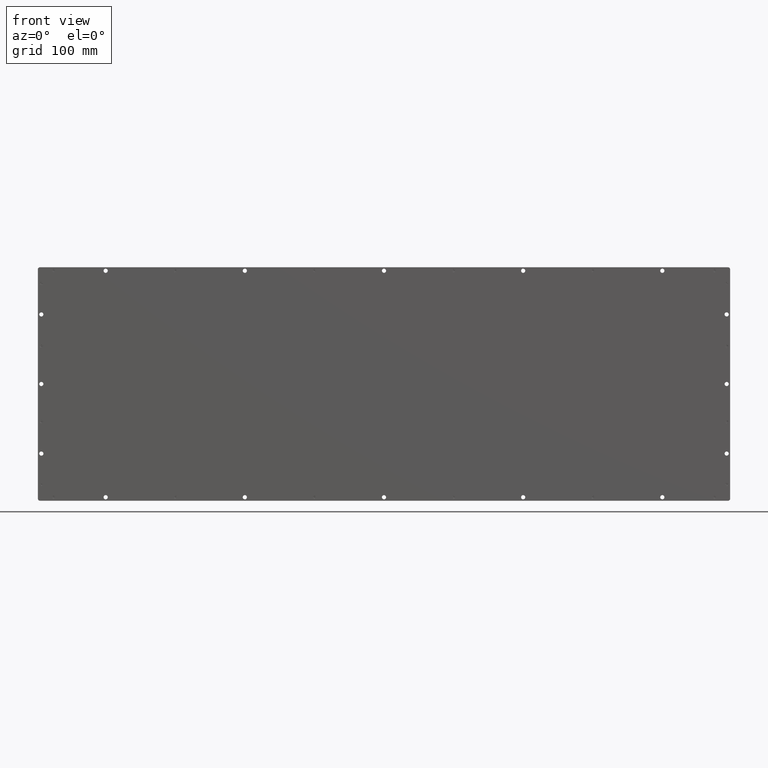
[diagram: clean part render]
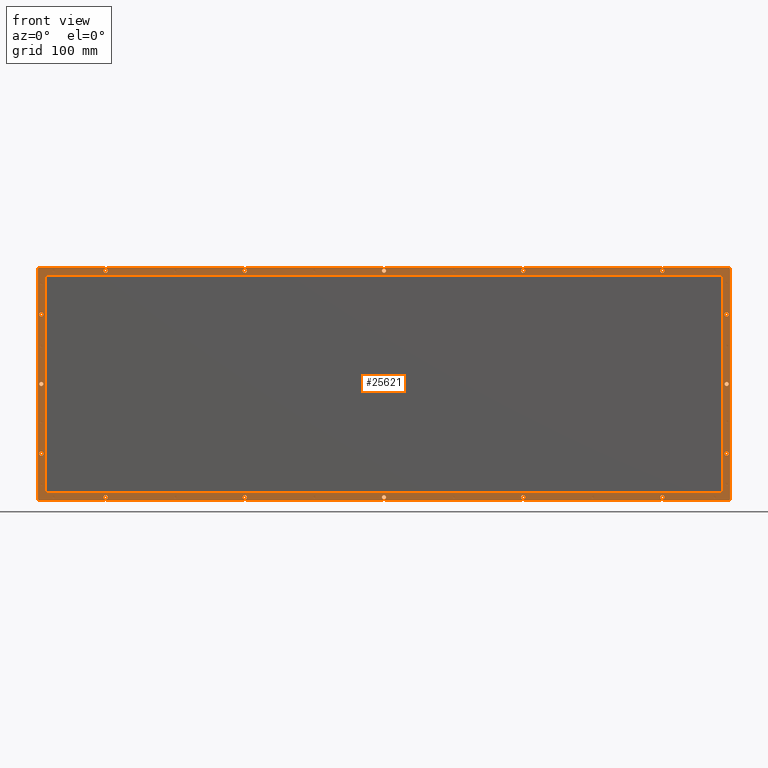
[diagram: same view with one face highlighted and labeled with its STEP entity id]
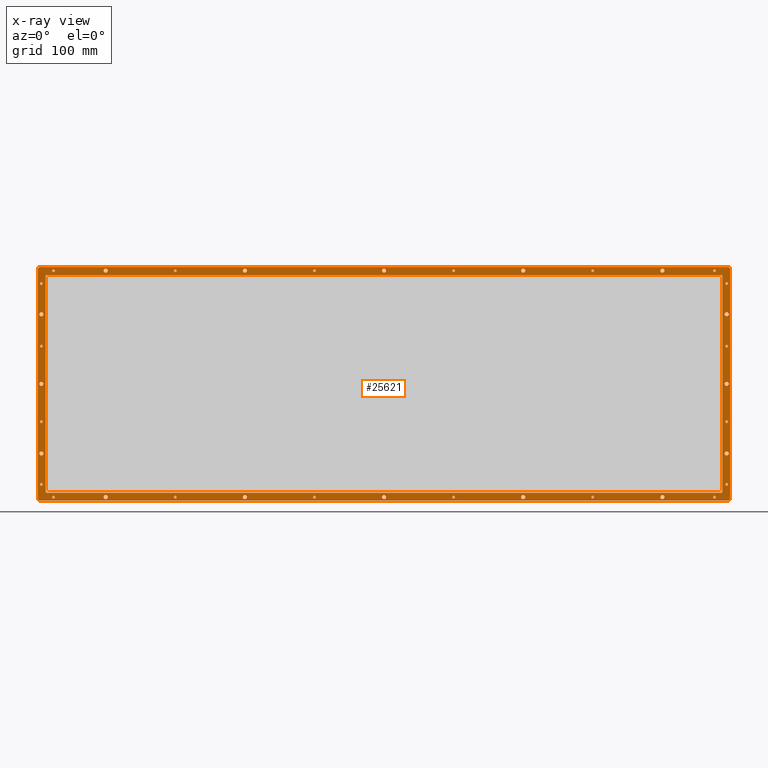
[diagram: x-ray of the same camera — body ghosted, the highlighted face saturated]
A machine part, front view. The second image highlights one B-rep face of the part: STEP entity #25621.
The next image is the same camera in x-ray: the body ghosted, the highlighted face saturated — about 0% of this face is hidden behind the body in this view.
In plain terms, the highlighted planar face has unit normal (-0, -1, 0).
Its self-contained STEP definition (entity closure, byte-faithful):
#2174=FACE_BOUND('',#5493,.T.);
#2175=FACE_BOUND('',#5494,.T.);
#2176=FACE_BOUND('',#5495,.T.);
#2177=FACE_BOUND('',#5496,.T.);
#2178=FACE_BOUND('',#5497,.T.);
#2179=FACE_BOUND('',#5498,.T.);
#2180=FACE_BOUND('',#5499,.T.);
#2181=FACE_BOUND('',#5500,.T.);
#2182=FACE_BOUND('',#5501,.T.);
#2183=FACE_BOUND('',#5502,.T.);
#2184=FACE_BOUND('',#5503,.T.);
#2185=FACE_BOUND('',#5504,.T.);
#2186=FACE_BOUND('',#5505,.T.);
#2187=FACE_BOUND('',#5506,.T.);
#2188=FACE_BOUND('',#5507,.T.);
#2189=FACE_BOUND('',#5508,.T.);
#2190=FACE_BOUND('',#5509,.T.);
#2191=FACE_BOUND('',#5510,.T.);
#2192=FACE_BOUND('',#5511,.T.);
#2193=FACE_BOUND('',#5512,.T.);
#2194=FACE_BOUND('',#5513,.T.);
#2195=FACE_BOUND('',#5514,.T.);
#2196=FACE_BOUND('',#5515,.T.);
#2197=FACE_BOUND('',#5516,.T.);
#2198=FACE_BOUND('',#5517,.T.);
#2199=FACE_BOUND('',#5518,.T.);
#2200=FACE_BOUND('',#5519,.T.);
#2201=FACE_BOUND('',#5520,.T.);
#2202=FACE_BOUND('',#5521,.T.);
#2203=FACE_BOUND('',#5522,.T.);
#2204=FACE_BOUND('',#5523,.T.);
#2205=FACE_BOUND('',#5524,.T.);
#2206=FACE_BOUND('',#5525,.T.);
#2207=FACE_BOUND('',#5526,.T.);
#2208=FACE_BOUND('',#5527,.T.);
#2209=FACE_BOUND('',#5528,.T.);
#2210=FACE_BOUND('',#5529,.T.);
#2821=CIRCLE('',#27711,2.);
#2822=CIRCLE('',#27712,2.);
#2825=CIRCLE('',#27716,2.);
#2826=CIRCLE('',#27717,2.);
#2829=CIRCLE('',#27721,2.);
#2830=CIRCLE('',#27722,2.);
#2833=CIRCLE('',#27726,2.);
#2834=CIRCLE('',#27727,2.);
#2837=CIRCLE('',#27731,2.);
#2838=CIRCLE('',#27732,2.);
#2841=CIRCLE('',#27736,2.);
#2842=CIRCLE('',#27737,2.);
#2845=CIRCLE('',#27741,2.);
#2846=CIRCLE('',#27742,2.);
#2849=CIRCLE('',#27746,2.);
#2850=CIRCLE('',#27747,2.);
#2853=CIRCLE('',#27751,2.);
#2854=CIRCLE('',#27752,2.);
#2857=CIRCLE('',#27756,2.);
#2858=CIRCLE('',#27757,2.);
#2861=CIRCLE('',#27761,2.);
#2862=CIRCLE('',#27762,2.);
#2865=CIRCLE('',#27766,2.);
#2866=CIRCLE('',#27767,2.);
#2869=CIRCLE('',#27771,2.);
#2870=CIRCLE('',#27772,2.);
#2873=CIRCLE('',#27776,2.);
#2874=CIRCLE('',#27777,2.);
#2877=CIRCLE('',#27781,2.);
#2878=CIRCLE('',#27782,2.);
#2881=CIRCLE('',#27786,2.);
#2882=CIRCLE('',#27787,2.);
#2885=CIRCLE('',#27791,2.);
#2886=CIRCLE('',#27792,2.);
#2889=CIRCLE('',#27796,2.);
#2890=CIRCLE('',#27797,2.);
#2893=CIRCLE('',#27801,2.);
#2894=CIRCLE('',#27802,2.);
#2897=CIRCLE('',#27806,2.);
#2898=CIRCLE('',#27807,2.);
#2901=CIRCLE('',#27811,1.9999985058502);
#2903=CIRCLE('',#27815,1.9999985058502);
#2905=CIRCLE('',#27819,1.9999985058502);
#2907=CIRCLE('',#27823,1.9999985058502);
#2910=CIRCLE('',#27828,2.99999775877528);
#2912=CIRCLE('',#27831,2.99999775877528);
#2914=CIRCLE('',#27834,2.99999775877528);
#2916=CIRCLE('',#27837,2.99999775877528);
#2918=CIRCLE('',#27840,2.99999775877528);
#2920=CIRCLE('',#27843,2.99999775877528);
#2922=CIRCLE('',#27846,2.99999775877528);
#2924=CIRCLE('',#27849,2.99999775877528);
#2926=CIRCLE('',#27852,2.99999775877528);
#2928=CIRCLE('',#27855,2.99999775877528);
#2930=CIRCLE('',#27858,2.99999775877528);
#2932=CIRCLE('',#27861,2.99999775877528);
#2934=CIRCLE('',#27864,2.99999775877528);
#2936=CIRCLE('',#27867,2.99999775877528);
#2938=CIRCLE('',#27870,2.99999775877528);
#2940=CIRCLE('',#27873,2.99999775877528);
#2961=CIRCLE('',#27915,2.99999775877528);
#2963=CIRCLE('',#27919,2.99999775877528);
#2965=CIRCLE('',#27923,2.99999775877528);
#2967=CIRCLE('',#27927,2.99999775877528);
#3885=FACE_OUTER_BOUND('',#5492,.T.);
#5492=EDGE_LOOP('',(#19324,#19325,#19326,#19327,#19328,#19329,#19330,#19331));
#5493=EDGE_LOOP('',(#19332,#19333));
#5494=EDGE_LOOP('',(#19334,#19335));
#5495=EDGE_LOOP('',(#19336,#19337));
#5496=EDGE_LOOP('',(#19338,#19339));
#5497=EDGE_LOOP('',(#19340,#19341));
#5498=EDGE_LOOP('',(#19342,#19343));
#5499=EDGE_LOOP('',(#19344,#19345));
#5500=EDGE_LOOP('',(#19346,#19347));
#5501=EDGE_LOOP('',(#19348,#19349));
#5502=EDGE_LOOP('',(#19350,#19351));
#5503=EDGE_LOOP('',(#19352,#19353));
#5504=EDGE_LOOP('',(#19354,#19355));
#5505=EDGE_LOOP('',(#19356,#19357));
#5506=EDGE_LOOP('',(#19358,#19359));
#5507=EDGE_LOOP('',(#19360,#19361));
#5508=EDGE_LOOP('',(#19362,#19363));
#5509=EDGE_LOOP('',(#19364,#19365));
#5510=EDGE_LOOP('',(#19366,#19367));
#5511=EDGE_LOOP('',(#19368,#19369));
#5512=EDGE_LOOP('',(#19370,#19371));
#5513=EDGE_LOOP('',(#19372,#19373,#19374,#19375,#19376,#19377,#19378,#19379));
#5514=EDGE_LOOP('',(#19380));
#5515=EDGE_LOOP('',(#19381));
#5516=EDGE_LOOP('',(#19382));
#5517=EDGE_LOOP('',(#19383));
#5518=EDGE_LOOP('',(#19384));
#5519=EDGE_LOOP('',(#19385));
#5520=EDGE_LOOP('',(#19386));
#5521=EDGE_LOOP('',(#19387));
#5522=EDGE_LOOP('',(#19388));
#5523=EDGE_LOOP('',(#19389));
#5524=EDGE_LOOP('',(#19390));
#5525=EDGE_LOOP('',(#19391));
#5526=EDGE_LOOP('',(#19392));
#5527=EDGE_LOOP('',(#19393));
#5528=EDGE_LOOP('',(#19394));
#5529=EDGE_LOOP('',(#19395));
#7238=LINE('',#39080,#9451);
#7242=LINE('',#39092,#9455);
#7246=LINE('',#39104,#9459);
#7250=LINE('',#39115,#9463);
#7290=LINE('',#39304,#9503);
#7294=LINE('',#39316,#9507);
#7298=LINE('',#39328,#9511);
#7302=LINE('',#39339,#9515);
#9451=VECTOR('',#31544,10.);
#9455=VECTOR('',#31556,10.);
#9459=VECTOR('',#31568,10.);
#9463=VECTOR('',#31580,10.);
#9503=VECTOR('',#31804,10.);
#9507=VECTOR('',#31816,10.);
#9511=VECTOR('',#31828,10.);
#9515=VECTOR('',#31840,10.);
#11758=VERTEX_POINT('',#38870);
#11759=VERTEX_POINT('',#38871);
#11762=VERTEX_POINT('',#38880);
#11763=VERTEX_POINT('',#38881);
#11766=VERTEX_POINT('',#38890);
#11767=VERTEX_POINT('',#38891);
#11770=VERTEX_POINT('',#38900);
#11771=VERTEX_POINT('',#38901);
#11774=VERTEX_POINT('',#38910);
#11775=VERTEX_POINT('',#38911);
#11778=VERTEX_POINT('',#38920);
#11779=VERTEX_POINT('',#38921);
#11782=VERTEX_POINT('',#38930);
#11783=VERTEX_POINT('',#38931);
#11786=VERTEX_POINT('',#38940);
#11787=VERTEX_POINT('',#38941);
#11790=VERTEX_POINT('',#38950);
#11791=VERTEX_POINT('',#38951);
#11794=VERTEX_POINT('',#38960);
#11795=VERTEX_POINT('',#38961);
#11798=VERTEX_POINT('',#38970);
#11799=VERTEX_POINT('',#38971);
#11802=VERTEX_POINT('',#38980);
#11803=VERTEX_POINT('',#38981);
#11806=VERTEX_POINT('',#38990);
#11807=VERTEX_POINT('',#38991);
#11810=VERTEX_POINT('',#39000);
#11811=VERTEX_POINT('',#39001);
#11814=VERTEX_POINT('',#39010);
#11815=VERTEX_POINT('',#39011);
#11818=VERTEX_POINT('',#39020);
#11819=VERTEX_POINT('',#39021);
#11822=VERTEX_POINT('',#39030);
#11823=VERTEX_POINT('',#39031);
#11826=VERTEX_POINT('',#39040);
#11827=VERTEX_POINT('',#39041);
#11830=VERTEX_POINT('',#39050);
#11831=VERTEX_POINT('',#39051);
#11834=VERTEX_POINT('',#39060);
#11835=VERTEX_POINT('',#39061);
#11838=VERTEX_POINT('',#39070);
#11839=VERTEX_POINT('',#39071);
#11842=VERTEX_POINT('',#39079);
#11844=VERTEX_POINT('',#39085);
#11846=VERTEX_POINT('',#39091);
#11848=VERTEX_POINT('',#39097);
#11850=VERTEX_POINT('',#39103);
#11852=VERTEX_POINT('',#39109);
#11855=VERTEX_POINT('',#39120);
#11857=VERTEX_POINT('',#39126);
#11859=VERTEX_POINT('',#39132);
#11861=VERTEX_POINT('',#39138);
#11863=VERTEX_POINT('',#39144);
#11865=VERTEX_POINT('',#39150);
#11867=VERTEX_POINT('',#39156);
#11869=VERTEX_POINT('',#39162);
#11871=VERTEX_POINT('',#39168);
#11873=VERTEX_POINT('',#39174);
#11875=VERTEX_POINT('',#39180);
#11877=VERTEX_POINT('',#39186);
#11879=VERTEX_POINT('',#39192);
#11881=VERTEX_POINT('',#39198);
#11883=VERTEX_POINT('',#39204);
#11885=VERTEX_POINT('',#39210);
#11906=VERTEX_POINT('',#39294);
#11907=VERTEX_POINT('',#39295);
#11910=VERTEX_POINT('',#39303);
#11912=VERTEX_POINT('',#39309);
#11914=VERTEX_POINT('',#39315);
#11916=VERTEX_POINT('',#39321);
#11918=VERTEX_POINT('',#39327);
#11920=VERTEX_POINT('',#39333);
#14477=EDGE_CURVE('',#11758,#11759,#2821,.T.);
#14478=EDGE_CURVE('',#11759,#11758,#2822,.T.);
#14482=EDGE_CURVE('',#11762,#11763,#2825,.T.);
#14483=EDGE_CURVE('',#11763,#11762,#2826,.T.);
#14487=EDGE_CURVE('',#11766,#11767,#2829,.T.);
#14488=EDGE_CURVE('',#11767,#11766,#2830,.T.);
#14492=EDGE_CURVE('',#11770,#11771,#2833,.T.);
#14493=EDGE_CURVE('',#11771,#11770,#2834,.T.);
#14497=EDGE_CURVE('',#11774,#11775,#2837,.T.);
#14498=EDGE_CURVE('',#11775,#11774,#2838,.T.);
#14502=EDGE_CURVE('',#11778,#11779,#2841,.T.);
#14503=EDGE_CURVE('',#11779,#11778,#2842,.T.);
#14507=EDGE_CURVE('',#11782,#11783,#2845,.T.);
#14508=EDGE_CURVE('',#11783,#11782,#2846,.T.);
#14512=EDGE_CURVE('',#11786,#11787,#2849,.T.);
#14513=EDGE_CURVE('',#11787,#11786,#2850,.T.);
#14517=EDGE_CURVE('',#11790,#11791,#2853,.T.);
#14518=EDGE_CURVE('',#11791,#11790,#2854,.T.);
#14522=EDGE_CURVE('',#11794,#11795,#2857,.T.);
#14523=EDGE_CURVE('',#11795,#11794,#2858,.T.);
#14527=EDGE_CURVE('',#11798,#11799,#2861,.T.);
#14528=EDGE_CURVE('',#11799,#11798,#2862,.T.);
#14532=EDGE_CURVE('',#11802,#11803,#2865,.T.);
#14533=EDGE_CURVE('',#11803,#11802,#2866,.T.);
#14537=EDGE_CURVE('',#11806,#11807,#2869,.T.);
#14538=EDGE_CURVE('',#11807,#11806,#2870,.T.);
#14542=EDGE_CURVE('',#11810,#11811,#2873,.T.);
#14543=EDGE_CURVE('',#11811,#11810,#2874,.T.);
#14547=EDGE_CURVE('',#11814,#11815,#2877,.T.);
#14548=EDGE_CURVE('',#11815,#11814,#2878,.T.);
#14552=EDGE_CURVE('',#11818,#11819,#2881,.T.);
#14553=EDGE_CURVE('',#11819,#11818,#2882,.T.);
#14557=EDGE_CURVE('',#11822,#11823,#2885,.T.);
#14558=EDGE_CURVE('',#11823,#11822,#2886,.T.);
#14562=EDGE_CURVE('',#11826,#11827,#2889,.T.);
#14563=EDGE_CURVE('',#11827,#11826,#2890,.T.);
#14567=EDGE_CURVE('',#11830,#11831,#2893,.T.);
#14568=EDGE_CURVE('',#11831,#11830,#2894,.T.);
#14572=EDGE_CURVE('',#11834,#11835,#2897,.T.);
#14573=EDGE_CURVE('',#11835,#11834,#2898,.T.);
#14577=EDGE_CURVE('',#11838,#11839,#2901,.T.);
#14581=EDGE_CURVE('',#11839,#11842,#7238,.T.);
#14584=EDGE_CURVE('',#11842,#11844,#2903,.T.);
#14587=EDGE_CURVE('',#11844,#11846,#7242,.T.);
#14590=EDGE_CURVE('',#11846,#11848,#2905,.T.);
#14593=EDGE_CURVE('',#11848,#11850,#7246,.T.);
#14596=EDGE_CURVE('',#11850,#11852,#2907,.T.);
#14599=EDGE_CURVE('',#11852,#11838,#7250,.T.);
#14603=EDGE_CURVE('',#11855,#11855,#2910,.T.);
#14606=EDGE_CURVE('',#11857,#11857,#2912,.T.);
#14609=EDGE_CURVE('',#11859,#11859,#2914,.T.);
#14612=EDGE_CURVE('',#11861,#11861,#2916,.T.);
#14615=EDGE_CURVE('',#11863,#11863,#2918,.T.);
#14618=EDGE_CURVE('',#11865,#11865,#2920,.T.);
#14621=EDGE_CURVE('',#11867,#11867,#2922,.T.);
#14624=EDGE_CURVE('',#11869,#11869,#2924,.T.);
#14627=EDGE_CURVE('',#11871,#11871,#2926,.T.);
#14630=EDGE_CURVE('',#11873,#11873,#2928,.T.);
#14633=EDGE_CURVE('',#11875,#11875,#2930,.T.);
#14636=EDGE_CURVE('',#11877,#11877,#2932,.T.);
#14639=EDGE_CURVE('',#11879,#11879,#2934,.T.);
#14642=EDGE_CURVE('',#11881,#11881,#2936,.T.);
#14645=EDGE_CURVE('',#11883,#11883,#2938,.T.);
#14648=EDGE_CURVE('',#11885,#11885,#2940,.T.);
#14689=EDGE_CURVE('',#11906,#11907,#2961,.T.);
#14693=EDGE_CURVE('',#11907,#11910,#7290,.T.);
#14696=EDGE_CURVE('',#11910,#11912,#2963,.T.);
#14699=EDGE_CURVE('',#11912,#11914,#7294,.T.);
#14702=EDGE_CURVE('',#11914,#11916,#2965,.T.);
#14705=EDGE_CURVE('',#11916,#11918,#7298,.T.);
#14708=EDGE_CURVE('',#11918,#11920,#2967,.T.);
#14711=EDGE_CURVE('',#11920,#11906,#7302,.T.);
#19324=ORIENTED_EDGE('',*,*,#14689,.F.);
#19325=ORIENTED_EDGE('',*,*,#14711,.F.);
#19326=ORIENTED_EDGE('',*,*,#14708,.F.);
#19327=ORIENTED_EDGE('',*,*,#14705,.F.);
#19328=ORIENTED_EDGE('',*,*,#14702,.F.);
#19329=ORIENTED_EDGE('',*,*,#14699,.F.);
#19330=ORIENTED_EDGE('',*,*,#14696,.F.);
#19331=ORIENTED_EDGE('',*,*,#14693,.F.);
#19332=ORIENTED_EDGE('',*,*,#14477,.T.);
#19333=ORIENTED_EDGE('',*,*,#14478,.T.);
#19334=ORIENTED_EDGE('',*,*,#14482,.T.);
#19335=ORIENTED_EDGE('',*,*,#14483,.T.);
#19336=ORIENTED_EDGE('',*,*,#14487,.T.);
#19337=ORIENTED_EDGE('',*,*,#14488,.T.);
#19338=ORIENTED_EDGE('',*,*,#14492,.T.);
#19339=ORIENTED_EDGE('',*,*,#14493,.T.);
#19340=ORIENTED_EDGE('',*,*,#14497,.T.);
#19341=ORIENTED_EDGE('',*,*,#14498,.T.);
#19342=ORIENTED_EDGE('',*,*,#14502,.T.);
#19343=ORIENTED_EDGE('',*,*,#14503,.T.);
#19344=ORIENTED_EDGE('',*,*,#14507,.T.);
#19345=ORIENTED_EDGE('',*,*,#14508,.T.);
#19346=ORIENTED_EDGE('',*,*,#14512,.T.);
#19347=ORIENTED_EDGE('',*,*,#14513,.T.);
#19348=ORIENTED_EDGE('',*,*,#14517,.T.);
#19349=ORIENTED_EDGE('',*,*,#14518,.T.);
#19350=ORIENTED_EDGE('',*,*,#14522,.T.);
#19351=ORIENTED_EDGE('',*,*,#14523,.T.);
#19352=ORIENTED_EDGE('',*,*,#14527,.T.);
#19353=ORIENTED_EDGE('',*,*,#14528,.T.);
#19354=ORIENTED_EDGE('',*,*,#14532,.T.);
#19355=ORIENTED_EDGE('',*,*,#14533,.T.);
#19356=ORIENTED_EDGE('',*,*,#14537,.T.);
#19357=ORIENTED_EDGE('',*,*,#14538,.T.);
#19358=ORIENTED_EDGE('',*,*,#14542,.T.);
#19359=ORIENTED_EDGE('',*,*,#14543,.T.);
#19360=ORIENTED_EDGE('',*,*,#14547,.T.);
#19361=ORIENTED_EDGE('',*,*,#14548,.T.);
#19362=ORIENTED_EDGE('',*,*,#14552,.T.);
#19363=ORIENTED_EDGE('',*,*,#14553,.T.);
#19364=ORIENTED_EDGE('',*,*,#14557,.T.);
#19365=ORIENTED_EDGE('',*,*,#14558,.T.);
#19366=ORIENTED_EDGE('',*,*,#14562,.T.);
#19367=ORIENTED_EDGE('',*,*,#14563,.T.);
#19368=ORIENTED_EDGE('',*,*,#14567,.T.);
#19369=ORIENTED_EDGE('',*,*,#14568,.T.);
#19370=ORIENTED_EDGE('',*,*,#14572,.T.);
#19371=ORIENTED_EDGE('',*,*,#14573,.T.);
#19372=ORIENTED_EDGE('',*,*,#14577,.T.);
#19373=ORIENTED_EDGE('',*,*,#14581,.T.);
#19374=ORIENTED_EDGE('',*,*,#14584,.T.);
#19375=ORIENTED_EDGE('',*,*,#14587,.T.);
#19376=ORIENTED_EDGE('',*,*,#14590,.T.);
#19377=ORIENTED_EDGE('',*,*,#14593,.T.);
#19378=ORIENTED_EDGE('',*,*,#14596,.T.);
#19379=ORIENTED_EDGE('',*,*,#14599,.T.);
#19380=ORIENTED_EDGE('',*,*,#14603,.T.);
#19381=ORIENTED_EDGE('',*,*,#14606,.T.);
#19382=ORIENTED_EDGE('',*,*,#14609,.T.);
#19383=ORIENTED_EDGE('',*,*,#14612,.T.);
#19384=ORIENTED_EDGE('',*,*,#14615,.T.);
#19385=ORIENTED_EDGE('',*,*,#14618,.T.);
#19386=ORIENTED_EDGE('',*,*,#14621,.T.);
#19387=ORIENTED_EDGE('',*,*,#14624,.T.);
#19388=ORIENTED_EDGE('',*,*,#14627,.T.);
#19389=ORIENTED_EDGE('',*,*,#14630,.T.);
#19390=ORIENTED_EDGE('',*,*,#14633,.T.);
#19391=ORIENTED_EDGE('',*,*,#14636,.T.);
#19392=ORIENTED_EDGE('',*,*,#14639,.T.);
#19393=ORIENTED_EDGE('',*,*,#14642,.T.);
#19394=ORIENTED_EDGE('',*,*,#14645,.T.);
#19395=ORIENTED_EDGE('',*,*,#14648,.T.);
#24618=PLANE('',#27930);
#25621=ADVANCED_FACE('',(#3885,#2174,#2175,#2176,#2177,#2178,#2179,#2180,
#2181,#2182,#2183,#2184,#2185,#2186,#2187,#2188,#2189,#2190,#2191,#2192,
#2193,#2194,#2195,#2196,#2197,#2198,#2199,#2200,#2201,#2202,#2203,#2204,
#2205,#2206,#2207,#2208,#2209,#2210),#24618,.T.);
#27711=AXIS2_PLACEMENT_3D('',#38872,#31316,#31317);
#27712=AXIS2_PLACEMENT_3D('',#38873,#31318,#31319);
#27716=AXIS2_PLACEMENT_3D('',#38882,#31327,#31328);
#27717=AXIS2_PLACEMENT_3D('',#38883,#31329,#31330);
#27721=AXIS2_PLACEMENT_3D('',#38892,#31338,#31339);
#27722=AXIS2_PLACEMENT_3D('',#38893,#31340,#31341);
#27726=AXIS2_PLACEMENT_3D('',#38902,#31349,#31350);
#27727=AXIS2_PLACEMENT_3D('',#38903,#31351,#31352);
#27731=AXIS2_PLACEMENT_3D('',#38912,#31360,#31361);
#27732=AXIS2_PLACEMENT_3D('',#38913,#31362,#31363);
#27736=AXIS2_PLACEMENT_3D('',#38922,#31371,#31372);
#27737=AXIS2_PLACEMENT_3D('',#38923,#31373,#31374);
#27741=AXIS2_PLACEMENT_3D('',#38932,#31382,#31383);
#27742=AXIS2_PLACEMENT_3D('',#38933,#31384,#31385);
#27746=AXIS2_PLACEMENT_3D('',#38942,#31393,#31394);
#27747=AXIS2_PLACEMENT_3D('',#38943,#31395,#31396);
#27751=AXIS2_PLACEMENT_3D('',#38952,#31404,#31405);
#27752=AXIS2_PLACEMENT_3D('',#38953,#31406,#31407);
#27756=AXIS2_PLACEMENT_3D('',#38962,#31415,#31416);
#27757=AXIS2_PLACEMENT_3D('',#38963,#31417,#31418);
#27761=AXIS2_PLACEMENT_3D('',#38972,#31426,#31427);
#27762=AXIS2_PLACEMENT_3D('',#38973,#31428,#31429);
#27766=AXIS2_PLACEMENT_3D('',#38982,#31437,#31438);
#27767=AXIS2_PLACEMENT_3D('',#38983,#31439,#31440);
#27771=AXIS2_PLACEMENT_3D('',#38992,#31448,#31449);
#27772=AXIS2_PLACEMENT_3D('',#38993,#31450,#31451);
#27776=AXIS2_PLACEMENT_3D('',#39002,#31459,#31460);
#27777=AXIS2_PLACEMENT_3D('',#39003,#31461,#31462);
#27781=AXIS2_PLACEMENT_3D('',#39012,#31470,#31471);
#27782=AXIS2_PLACEMENT_3D('',#39013,#31472,#31473);
#27786=AXIS2_PLACEMENT_3D('',#39022,#31481,#31482);
#27787=AXIS2_PLACEMENT_3D('',#39023,#31483,#31484);
#27791=AXIS2_PLACEMENT_3D('',#39032,#31492,#31493);
#27792=AXIS2_PLACEMENT_3D('',#39033,#31494,#31495);
#27796=AXIS2_PLACEMENT_3D('',#39042,#31503,#31504);
#27797=AXIS2_PLACEMENT_3D('',#39043,#31505,#31506);
#27801=AXIS2_PLACEMENT_3D('',#39052,#31514,#31515);
#27802=AXIS2_PLACEMENT_3D('',#39053,#31516,#31517);
#27806=AXIS2_PLACEMENT_3D('',#39062,#31525,#31526);
#27807=AXIS2_PLACEMENT_3D('',#39063,#31527,#31528);
#27811=AXIS2_PLACEMENT_3D('',#39072,#31536,#31537);
#27815=AXIS2_PLACEMENT_3D('',#39086,#31549,#31550);
#27819=AXIS2_PLACEMENT_3D('',#39098,#31561,#31562);
#27823=AXIS2_PLACEMENT_3D('',#39110,#31573,#31574);
#27828=AXIS2_PLACEMENT_3D('',#39122,#31587,#31588);
#27831=AXIS2_PLACEMENT_3D('',#39128,#31594,#31595);
#27834=AXIS2_PLACEMENT_3D('',#39134,#31601,#31602);
#27837=AXIS2_PLACEMENT_3D('',#39140,#31608,#31609);
#27840=AXIS2_PLACEMENT_3D('',#39146,#31615,#31616);
#27843=AXIS2_PLACEMENT_3D('',#39152,#31622,#31623);
#27846=AXIS2_PLACEMENT_3D('',#39158,#31629,#31630);
#27849=AXIS2_PLACEMENT_3D('',#39164,#31636,#31637);
#27852=AXIS2_PLACEMENT_3D('',#39170,#31643,#31644);
#27855=AXIS2_PLACEMENT_3D('',#39176,#31650,#31651);
#27858=AXIS2_PLACEMENT_3D('',#39182,#31657,#31658);
#27861=AXIS2_PLACEMENT_3D('',#39188,#31664,#31665);
#27864=AXIS2_PLACEMENT_3D('',#39194,#31671,#31672);
#27867=AXIS2_PLACEMENT_3D('',#39200,#31678,#31679);
#27870=AXIS2_PLACEMENT_3D('',#39206,#31685,#31686);
#27873=AXIS2_PLACEMENT_3D('',#39212,#31692,#31693);
#27915=AXIS2_PLACEMENT_3D('',#39296,#31796,#31797);
#27919=AXIS2_PLACEMENT_3D('',#39310,#31809,#31810);
#27923=AXIS2_PLACEMENT_3D('',#39322,#31821,#31822);
#27927=AXIS2_PLACEMENT_3D('',#39334,#31833,#31834);
#27930=AXIS2_PLACEMENT_3D('',#39341,#31842,#31843);
#31316=DIRECTION('center_axis',(0.,0.,-1.));
#31317=DIRECTION('ref_axis',(1.,0.,0.));
#31318=DIRECTION('center_axis',(0.,0.,-1.));
#31319=DIRECTION('ref_axis',(1.,0.,0.));
#31327=DIRECTION('center_axis',(0.,0.,-1.));
#31328=DIRECTION('ref_axis',(1.,0.,0.));
#31329=DIRECTION('center_axis',(0.,0.,-1.));
#31330=DIRECTION('ref_axis',(1.,0.,0.));
#31338=DIRECTION('center_axis',(0.,0.,-1.));
#31339=DIRECTION('ref_axis',(1.,0.,0.));
#31340=DIRECTION('center_axis',(0.,0.,-1.));
#31341=DIRECTION('ref_axis',(1.,0.,0.));
#31349=DIRECTION('center_axis',(0.,0.,-1.));
#31350=DIRECTION('ref_axis',(1.,0.,0.));
#31351=DIRECTION('center_axis',(0.,0.,-1.));
#31352=DIRECTION('ref_axis',(1.,0.,0.));
#31360=DIRECTION('center_axis',(0.,0.,-1.));
#31361=DIRECTION('ref_axis',(1.,0.,0.));
#31362=DIRECTION('center_axis',(0.,0.,-1.));
#31363=DIRECTION('ref_axis',(1.,0.,0.));
#31371=DIRECTION('center_axis',(0.,0.,-1.));
#31372=DIRECTION('ref_axis',(1.,0.,0.));
#31373=DIRECTION('center_axis',(0.,0.,-1.));
#31374=DIRECTION('ref_axis',(1.,0.,0.));
#31382=DIRECTION('center_axis',(0.,0.,-1.));
#31383=DIRECTION('ref_axis',(1.,0.,0.));
#31384=DIRECTION('center_axis',(0.,0.,-1.));
#31385=DIRECTION('ref_axis',(1.,0.,0.));
#31393=DIRECTION('center_axis',(0.,0.,-1.));
#31394=DIRECTION('ref_axis',(1.,0.,0.));
#31395=DIRECTION('center_axis',(0.,0.,-1.));
#31396=DIRECTION('ref_axis',(1.,0.,0.));
#31404=DIRECTION('center_axis',(0.,0.,-1.));
#31405=DIRECTION('ref_axis',(1.,0.,0.));
#31406=DIRECTION('center_axis',(0.,0.,-1.));
#31407=DIRECTION('ref_axis',(1.,0.,0.));
#31415=DIRECTION('center_axis',(0.,0.,-1.));
#31416=DIRECTION('ref_axis',(1.,0.,0.));
#31417=DIRECTION('center_axis',(0.,0.,-1.));
#31418=DIRECTION('ref_axis',(1.,0.,0.));
#31426=DIRECTION('center_axis',(0.,0.,-1.));
#31427=DIRECTION('ref_axis',(1.,0.,0.));
#31428=DIRECTION('center_axis',(0.,0.,-1.));
#31429=DIRECTION('ref_axis',(1.,0.,0.));
#31437=DIRECTION('center_axis',(0.,0.,-1.));
#31438=DIRECTION('ref_axis',(1.,0.,0.));
#31439=DIRECTION('center_axis',(0.,0.,-1.));
#31440=DIRECTION('ref_axis',(1.,0.,0.));
#31448=DIRECTION('center_axis',(0.,0.,-1.));
#31449=DIRECTION('ref_axis',(1.,0.,0.));
#31450=DIRECTION('center_axis',(0.,0.,-1.));
#31451=DIRECTION('ref_axis',(1.,0.,0.));
#31459=DIRECTION('center_axis',(0.,0.,-1.));
#31460=DIRECTION('ref_axis',(1.,0.,0.));
#31461=DIRECTION('center_axis',(0.,0.,-1.));
#31462=DIRECTION('ref_axis',(1.,0.,0.));
#31470=DIRECTION('center_axis',(0.,0.,-1.));
#31471=DIRECTION('ref_axis',(1.,0.,0.));
#31472=DIRECTION('center_axis',(0.,0.,-1.));
#31473=DIRECTION('ref_axis',(1.,0.,0.));
#31481=DIRECTION('center_axis',(0.,0.,-1.));
#31482=DIRECTION('ref_axis',(1.,0.,0.));
#31483=DIRECTION('center_axis',(0.,0.,-1.));
#31484=DIRECTION('ref_axis',(1.,0.,0.));
#31492=DIRECTION('center_axis',(0.,0.,-1.));
#31493=DIRECTION('ref_axis',(1.,0.,0.));
#31494=DIRECTION('center_axis',(0.,0.,-1.));
#31495=DIRECTION('ref_axis',(1.,0.,0.));
#31503=DIRECTION('center_axis',(0.,0.,-1.));
#31504=DIRECTION('ref_axis',(1.,0.,0.));
#31505=DIRECTION('center_axis',(0.,0.,-1.));
#31506=DIRECTION('ref_axis',(1.,0.,0.));
#31514=DIRECTION('center_axis',(0.,0.,-1.));
#31515=DIRECTION('ref_axis',(1.,0.,0.));
#31516=DIRECTION('center_axis',(0.,0.,-1.));
#31517=DIRECTION('ref_axis',(1.,0.,0.));
#31525=DIRECTION('center_axis',(0.,0.,-1.));
#31526=DIRECTION('ref_axis',(1.,0.,0.));
#31527=DIRECTION('center_axis',(0.,0.,-1.));
#31528=DIRECTION('ref_axis',(1.,0.,0.));
#31536=DIRECTION('center_axis',(0.,0.,-1.));
#31537=DIRECTION('ref_axis',(-2.84217306635654E-13,-1.,0.));
#31544=DIRECTION('',(1.,7.33274234849181E-17,0.));
#31549=DIRECTION('center_axis',(0.,0.,-1.));
#31550=DIRECTION('ref_axis',(-1.,-2.66453724970999E-14,0.));
#31556=DIRECTION('',(1.83959282560137E-15,-1.,0.));
#31561=DIRECTION('center_axis',(0.,0.,-1.));
#31562=DIRECTION('ref_axis',(0.,1.,0.));
#31568=DIRECTION('',(-1.,-7.6993794659164E-16,0.));
#31573=DIRECTION('center_axis',(0.,0.,-1.));
#31574=DIRECTION('ref_axis',(1.,0.,0.));
#31580=DIRECTION('',(0.,1.,0.));
#31587=DIRECTION('center_axis',(0.,0.,-1.));
#31588=DIRECTION('ref_axis',(-1.,0.,0.));
#31594=DIRECTION('center_axis',(0.,0.,-1.));
#31595=DIRECTION('ref_axis',(-1.,0.,0.));
#31601=DIRECTION('center_axis',(0.,0.,-1.));
#31602=DIRECTION('ref_axis',(-1.,0.,0.));
#31608=DIRECTION('center_axis',(0.,0.,-1.));
#31609=DIRECTION('ref_axis',(-1.,0.,0.));
#31615=DIRECTION('center_axis',(0.,0.,-1.));
#31616=DIRECTION('ref_axis',(-1.,0.,0.));
#31622=DIRECTION('center_axis',(0.,0.,-1.));
#31623=DIRECTION('ref_axis',(-1.,0.,0.));
#31629=DIRECTION('center_axis',(0.,0.,-1.));
#31630=DIRECTION('ref_axis',(-1.,0.,0.));
#31636=DIRECTION('center_axis',(0.,0.,-1.));
#31637=DIRECTION('ref_axis',(-1.,0.,0.));
#31643=DIRECTION('center_axis',(0.,0.,-1.));
#31644=DIRECTION('ref_axis',(-1.,0.,0.));
#31650=DIRECTION('center_axis',(0.,0.,-1.));
#31651=DIRECTION('ref_axis',(-1.,0.,0.));
#31657=DIRECTION('center_axis',(0.,0.,-1.));
#31658=DIRECTION('ref_axis',(-1.,0.,0.));
#31664=DIRECTION('center_axis',(0.,0.,-1.));
#31665=DIRECTION('ref_axis',(-1.,0.,0.));
#31671=DIRECTION('center_axis',(0.,0.,-1.));
#31672=DIRECTION('ref_axis',(-1.,0.,0.));
#31678=DIRECTION('center_axis',(0.,0.,-1.));
#31679=DIRECTION('ref_axis',(-1.,0.,0.));
#31685=DIRECTION('center_axis',(0.,0.,-1.));
#31686=DIRECTION('ref_axis',(-1.,0.,0.));
#31692=DIRECTION('center_axis',(0.,0.,-1.));
#31693=DIRECTION('ref_axis',(-1.,0.,0.));
#31796=DIRECTION('center_axis',(0.,0.,-1.));
#31797=DIRECTION('ref_axis',(0.,-1.,0.));
#31804=DIRECTION('',(1.,7.18445634519416E-17,0.));
#31809=DIRECTION('center_axis',(0.,0.,-1.));
#31810=DIRECTION('ref_axis',(-1.,-2.36847755529786E-14,0.));
#31816=DIRECTION('',(2.58771250777792E-15,-1.,0.));
#31821=DIRECTION('center_axis',(0.,0.,-1.));
#31822=DIRECTION('ref_axis',(0.,1.,0.));
#31828=DIRECTION('',(-1.,-2.15533690355825E-16,0.));
#31833=DIRECTION('center_axis',(0.,0.,-1.));
#31834=DIRECTION('ref_axis',(1.,0.,0.));
#31840=DIRECTION('',(0.,1.,0.));
#31842=DIRECTION('center_axis',(0.,0.,1.));
#31843=DIRECTION('ref_axis',(1.,0.,0.));
#38870=CARTESIAN_POINT('',(-490.5,54.25,1.5));
#38871=CARTESIAN_POINT('',(-494.5,54.25,1.50000000000001));
#38872=CARTESIAN_POINT('Origin',(-492.5,54.25,1.5));
#38873=CARTESIAN_POINT('Origin',(-492.5,54.25,1.5));
#38880=CARTESIAN_POINT('',(-490.5,-144.25,1.5));
#38881=CARTESIAN_POINT('',(-494.5,-144.25,1.50000000000001));
#38882=CARTESIAN_POINT('Origin',(-492.5,-144.25,1.5));
#38883=CARTESIAN_POINT('Origin',(-492.5,-144.25,1.5));
#38890=CARTESIAN_POINT('',(-298.,-162.75,1.5));
#38891=CARTESIAN_POINT('',(-302.,-162.75,1.5));
#38892=CARTESIAN_POINT('Origin',(-300.,-162.75,1.5));
#38893=CARTESIAN_POINT('Origin',(-300.,-162.75,1.5));
#38900=CARTESIAN_POINT('',(102.,-162.75,1.5));
#38901=CARTESIAN_POINT('',(98.,-162.75,1.5));
#38902=CARTESIAN_POINT('Origin',(100.,-162.75,1.5));
#38903=CARTESIAN_POINT('Origin',(100.,-162.75,1.5));
#38910=CARTESIAN_POINT('',(477.,-162.75,1.5));
#38911=CARTESIAN_POINT('',(473.,-162.75,1.50000000000001));
#38912=CARTESIAN_POINT('Origin',(475.,-162.75,1.5));
#38913=CARTESIAN_POINT('Origin',(475.,-162.75,1.5));
#38920=CARTESIAN_POINT('',(494.5,-54.25,1.5));
#38921=CARTESIAN_POINT('',(490.5,-54.25,1.50000000000001));
#38922=CARTESIAN_POINT('Origin',(492.5,-54.25,1.5));
#38923=CARTESIAN_POINT('Origin',(492.5,-54.25,1.5));
#38930=CARTESIAN_POINT('',(494.5,144.25,1.5));
#38931=CARTESIAN_POINT('',(490.5,144.25,1.50000000000001));
#38932=CARTESIAN_POINT('Origin',(492.5,144.25,1.5));
#38933=CARTESIAN_POINT('Origin',(492.5,144.25,1.5));
#38940=CARTESIAN_POINT('',(302.,162.75,1.5));
#38941=CARTESIAN_POINT('',(298.,162.75,1.5));
#38942=CARTESIAN_POINT('Origin',(300.,162.75,1.5));
#38943=CARTESIAN_POINT('Origin',(300.,162.75,1.5));
#38950=CARTESIAN_POINT('',(-98.,162.75,1.5));
#38951=CARTESIAN_POINT('',(-102.,162.75,1.5));
#38952=CARTESIAN_POINT('Origin',(-100.,162.75,1.5));
#38953=CARTESIAN_POINT('Origin',(-100.,162.75,1.5));
#38960=CARTESIAN_POINT('',(-473.,162.75,1.5));
#38961=CARTESIAN_POINT('',(-477.,162.75,1.50000000000001));
#38962=CARTESIAN_POINT('Origin',(-475.,162.75,1.5));
#38963=CARTESIAN_POINT('Origin',(-475.,162.75,1.5));
#38970=CARTESIAN_POINT('',(-298.,162.75,1.5));
#38971=CARTESIAN_POINT('',(-302.,162.75,1.5));
#38972=CARTESIAN_POINT('Origin',(-300.,162.75,1.5));
#38973=CARTESIAN_POINT('Origin',(-300.,162.75,1.5));
#38980=CARTESIAN_POINT('',(102.,162.75,1.5));
#38981=CARTESIAN_POINT('',(98.,162.75,1.5));
#38982=CARTESIAN_POINT('Origin',(100.,162.75,1.5));
#38983=CARTESIAN_POINT('Origin',(100.,162.75,1.5));
#38990=CARTESIAN_POINT('',(477.,162.75,1.5));
#38991=CARTESIAN_POINT('',(473.,162.75,1.50000000000001));
#38992=CARTESIAN_POINT('Origin',(475.,162.75,1.5));
#38993=CARTESIAN_POINT('Origin',(475.,162.75,1.5));
#39000=CARTESIAN_POINT('',(494.5,54.25,1.5));
#39001=CARTESIAN_POINT('',(490.5,54.25,1.50000000000001));
#39002=CARTESIAN_POINT('Origin',(492.5,54.25,1.5));
#39003=CARTESIAN_POINT('Origin',(492.5,54.25,1.5));
#39010=CARTESIAN_POINT('',(494.5,-144.25,1.5));
#39011=CARTESIAN_POINT('',(490.5,-144.25,1.50000000000001));
#39012=CARTESIAN_POINT('Origin',(492.5,-144.25,1.5));
#39013=CARTESIAN_POINT('Origin',(492.5,-144.25,1.5));
#39020=CARTESIAN_POINT('',(302.,-162.75,1.5));
#39021=CARTESIAN_POINT('',(298.,-162.75,1.5));
#39022=CARTESIAN_POINT('Origin',(300.,-162.75,1.5));
#39023=CARTESIAN_POINT('Origin',(300.,-162.75,1.5));
#39030=CARTESIAN_POINT('',(-98.,-162.75,1.5));
#39031=CARTESIAN_POINT('',(-102.,-162.75,1.5));
#39032=CARTESIAN_POINT('Origin',(-100.,-162.75,1.5));
#39033=CARTESIAN_POINT('Origin',(-100.,-162.75,1.5));
#39040=CARTESIAN_POINT('',(-473.,-162.75,1.5));
#39041=CARTESIAN_POINT('',(-477.,-162.75,1.50000000000001));
#39042=CARTESIAN_POINT('Origin',(-475.,-162.75,1.5));
#39043=CARTESIAN_POINT('Origin',(-475.,-162.75,1.5));
#39050=CARTESIAN_POINT('',(-490.5,-54.25,1.5));
#39051=CARTESIAN_POINT('',(-494.5,-54.25,1.50000000000001));
#39052=CARTESIAN_POINT('Origin',(-492.5,-54.25,1.5));
#39053=CARTESIAN_POINT('Origin',(-492.5,-54.25,1.5));
#39060=CARTESIAN_POINT('',(-490.5,144.25,1.5));
#39061=CARTESIAN_POINT('',(-494.5,144.25,1.50000000000001));
#39062=CARTESIAN_POINT('Origin',(-492.5,144.25,1.5));
#39063=CARTESIAN_POINT('Origin',(-492.5,144.25,1.5));
#39070=CARTESIAN_POINT('',(-486.5,154.50000149415,1.5));
#39071=CARTESIAN_POINT('',(-484.50000149415,156.500000000001,1.5));
#39072=CARTESIAN_POINT('Origin',(-484.50000149415,154.50000149415,1.5));
#39079=CARTESIAN_POINT('',(484.50000149415,156.500000000001,1.5));
#39080=CARTESIAN_POINT('',(-242.250000747075,156.500000000001,1.5));
#39085=CARTESIAN_POINT('',(486.5,154.50000149415,1.5));
#39086=CARTESIAN_POINT('Origin',(484.50000149415,154.50000149415,1.5));
#39091=CARTESIAN_POINT('',(486.500000000001,-154.50000149415,1.5));
#39092=CARTESIAN_POINT('',(486.5,77.2500007470758,1.5));
#39097=CARTESIAN_POINT('',(484.50000149415,-156.5,1.5));
#39098=CARTESIAN_POINT('Origin',(484.50000149415,-154.50000149415,1.5));
#39103=CARTESIAN_POINT('',(-484.50000149415,-156.500000000001,1.5));
#39104=CARTESIAN_POINT('',(242.250000747075,-156.5,1.5));
#39109=CARTESIAN_POINT('',(-486.5,-154.50000149415,1.5));
#39110=CARTESIAN_POINT('Origin',(-484.50000149415,-154.50000149415,1.5));
#39115=CARTESIAN_POINT('',(-486.5,-77.250000747075,1.5));
#39120=CARTESIAN_POINT('',(402.999997758775,162.75,1.5));
#39122=CARTESIAN_POINT('Origin',(400.,162.75,1.5));
#39126=CARTESIAN_POINT('',(495.499997758775,100.,1.5));
#39128=CARTESIAN_POINT('Origin',(492.5,100.,1.5));
#39132=CARTESIAN_POINT('',(202.999997758775,162.75,1.5));
#39134=CARTESIAN_POINT('Origin',(200.,162.75,1.5));
#39138=CARTESIAN_POINT('',(495.499997758775,3.67393765273338E-16,1.5));
#39140=CARTESIAN_POINT('Origin',(492.5,0.,1.5));
#39144=CARTESIAN_POINT('',(402.999997758775,-162.75,1.5));
#39146=CARTESIAN_POINT('Origin',(400.,-162.75,1.5));
#39150=CARTESIAN_POINT('',(202.999997758775,-162.75,1.5));
#39152=CARTESIAN_POINT('Origin',(200.,-162.75,1.5));
#39156=CARTESIAN_POINT('',(495.499997758775,-100.,1.5));
#39158=CARTESIAN_POINT('Origin',(492.5,-100.,1.5));
#39162=CARTESIAN_POINT('',(2.99999775877528,162.75,1.5));
#39164=CARTESIAN_POINT('Origin',(0.,162.75,1.5));
#39168=CARTESIAN_POINT('',(-197.000002241225,162.75,1.5));
#39170=CARTESIAN_POINT('Origin',(-200.,162.75,1.5));
#39174=CARTESIAN_POINT('',(-397.000002241225,162.75,1.5));
#39176=CARTESIAN_POINT('Origin',(-400.,162.75,1.5));
#39180=CARTESIAN_POINT('',(-489.500002241225,100.,1.5));
#39182=CARTESIAN_POINT('Origin',(-492.5,100.,1.5));
#39186=CARTESIAN_POINT('',(2.99999775877528,-162.75,1.5));
#39188=CARTESIAN_POINT('Origin',(0.,-162.75,1.5));
#39192=CARTESIAN_POINT('',(-489.500002241225,3.67393765273338E-16,1.5));
#39194=CARTESIAN_POINT('Origin',(-492.5,0.,1.5));
#39198=CARTESIAN_POINT('',(-197.000002241225,-162.75,1.5));
#39200=CARTESIAN_POINT('Origin',(-200.,-162.75,1.5));
#39204=CARTESIAN_POINT('',(-397.000002241225,-162.75,1.5));
#39206=CARTESIAN_POINT('Origin',(-400.,-162.75,1.5));
#39210=CARTESIAN_POINT('',(-489.500002241225,-100.,1.5));
#39212=CARTESIAN_POINT('Origin',(-492.5,-100.,1.5));
#39294=CARTESIAN_POINT('',(-497.5,164.750002241226,1.5));
#39295=CARTESIAN_POINT('',(-494.500002241226,167.750000000001,1.5));
#39296=CARTESIAN_POINT('Origin',(-494.500002241226,164.750002241226,1.5));
#39303=CARTESIAN_POINT('',(494.500002241226,167.750000000001,1.5));
#39304=CARTESIAN_POINT('',(-494.500002241226,167.750000000001,1.5));
#39309=CARTESIAN_POINT('',(497.5,164.750002241226,1.5));
#39310=CARTESIAN_POINT('Origin',(494.500002241226,164.750002241226,1.5));
#39315=CARTESIAN_POINT('',(497.500000000001,-164.750002241225,1.5));
#39316=CARTESIAN_POINT('',(497.5,164.750002241226,1.5));
#39321=CARTESIAN_POINT('',(494.500002241226,-167.75,1.5));
#39322=CARTESIAN_POINT('Origin',(494.500002241226,-164.750002241226,1.5));
#39327=CARTESIAN_POINT('',(-494.500002241226,-167.75,1.5));
#39328=CARTESIAN_POINT('',(494.500002241226,-167.75,1.5));
#39333=CARTESIAN_POINT('',(-497.5,-164.750002241226,1.5));
#39334=CARTESIAN_POINT('Origin',(-494.500002241226,-164.750002241226,1.5));
#39339=CARTESIAN_POINT('',(-497.5,-164.750002241226,1.5));
#39341=CARTESIAN_POINT('Origin',(3.59434704222394E-14,3.35564909192954E-13,
1.5));